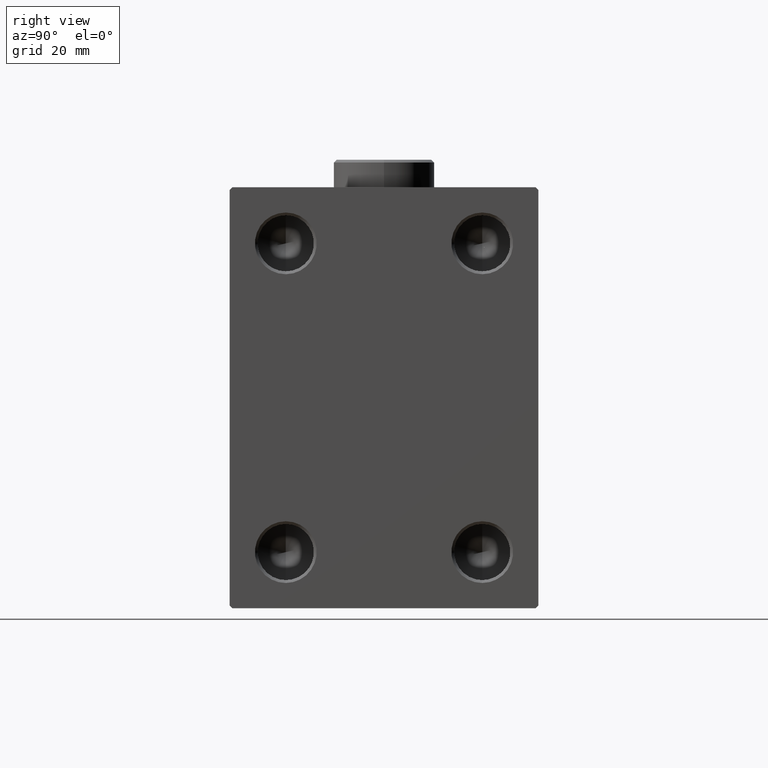
[diagram: clean part render]
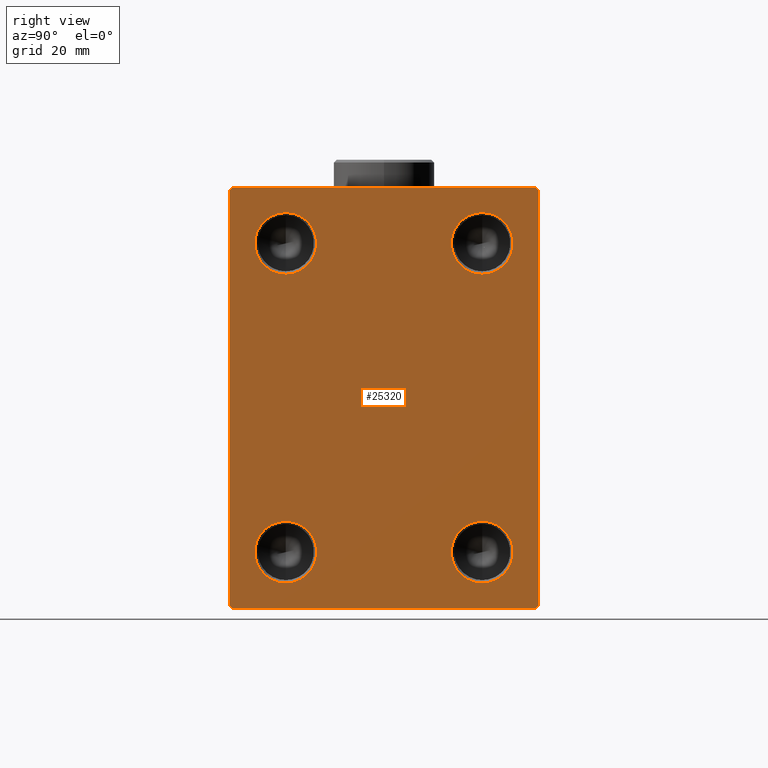
[diagram: same view with one face highlighted and labeled with its STEP entity id]
A machine part, right view. The second image highlights one B-rep face of the part: STEP entity #25320.
In plain terms, the highlighted planar face has unit normal (1, 0, 0).
Its self-contained STEP definition (entity closure, byte-faithful):
#144 = CIRCLE ( 'NONE', #19260, 5.500000000000001776 ) ;
#539 = CARTESIAN_POINT ( 'NONE',  ( 75.00000000000000000, 32.25000000000000000, 32.25000000000000000 ) ) ;
#1621 = CARTESIAN_POINT ( 'NONE',  ( 75.00000000000000000, 27.00000000000001066, 37.50000000000000000 ) ) ;
#1673 = ORIENTED_EDGE ( 'NONE', *, *, #9404, .T. ) ;
#1737 = VERTEX_POINT ( 'NONE', #24096 ) ;
#1793 = ORIENTED_EDGE ( 'NONE', *, *, #36798, .F. ) ;
#1804 = EDGE_CURVE ( 'NONE', #43908, #29186, #42068, .T. ) ;
#2322 = DIRECTION ( 'NONE',  ( 1.000000000000000000, -0.000000000000000000, -0.000000000000000000 ) ) ;
#2407 = DIRECTION ( 'NONE',  ( 1.000000000000000000, -0.000000000000000000, -0.000000000000000000 ) ) ;
#3032 = EDGE_CURVE ( 'NONE', #1737, #24815, #43502, .T. ) ;
#3157 = CARTESIAN_POINT ( 'NONE',  ( 75.00000000000000000, -27.49999999999999645, 37.49999999999998579 ) ) ;
#3461 = CARTESIAN_POINT ( 'NONE',  ( 75.00000000000000000, -27.49999999999999645, -37.00000000000000000 ) ) ;
#3662 = ORIENTED_EDGE ( 'NONE', *, *, #32637, .F. ) ;
#3777 = LINE ( 'NONE', #17599, #17011 ) ;
#4272 = CARTESIAN_POINT ( 'NONE',  ( 75.00000000000000000, -27.49999999999999645, -37.50000000000000000 ) ) ;
#4299 = CARTESIAN_POINT ( 'NONE',  ( 75.00000000000000000, 27.50000000000000355, -37.00000000000000000 ) ) ;
#4615 = DIRECTION ( 'NONE',  ( 0.000000000000000000, -0.7071067811865474617, -0.7071067811865474617 ) ) ;
#4986 = CIRCLE ( 'NONE', #30746, 5.500000000000018652 ) ;
#5028 = DIRECTION ( 'NONE',  ( 0.000000000000000000, -1.000000000000000000, -2.523234146875355998E-16 ) ) ;
#5125 = EDGE_CURVE ( 'NONE', #29186, #24761, #11251, .T. ) ;
#5245 = CARTESIAN_POINT ( 'NONE',  ( 75.00000000000000000, -27.49999999999999645, 36.99999999999997158 ) ) ;
#6049 = EDGE_CURVE ( 'NONE', #45426, #43908, #41751, .T. ) ;
#7092 = CARTESIAN_POINT ( 'NONE',  ( 75.00000000000000000, 17.50000000000000000, 33.00000000000001421 ) ) ;
#8102 = VERTEX_POINT ( 'NONE', #1621 ) ;
#8502 = CARTESIAN_POINT ( 'NONE',  ( 75.00000000000000000, 27.49999999999999645, 37.50000000000000000 ) ) ;
#9253 = DIRECTION ( 'NONE',  ( 0.000000000000000000, 0.000000000000000000, -1.000000000000000000 ) ) ;
#9404 = EDGE_CURVE ( 'NONE', #15386, #8102, #39245, .T. ) ;
#9546 = EDGE_CURVE ( 'NONE', #35651, #12459, #25163, .T. ) ;
#9634 = VECTOR ( 'NONE', #17876, 1000.000000000000000 ) ;
#10462 = DIRECTION ( 'NONE',  ( 1.000000000000000000, 0.000000000000000000, 0.000000000000000000 ) ) ;
#10842 = DIRECTION ( 'NONE',  ( 1.000000000000000000, -0.000000000000000000, -0.000000000000000000 ) ) ;
#11173 = CIRCLE ( 'NONE', #25154, 5.500000000000018652 ) ;
#11251 = LINE ( 'NONE', #25529, #30185 ) ;
#11361 = CARTESIAN_POINT ( 'NONE',  ( 75.00000000000000000, 0.000000000000000000, 0.000000000000000000 ) ) ;
#11873 = AXIS2_PLACEMENT_3D ( 'NONE', #30206, #2322, #9253 ) ;
#11959 = LINE ( 'NONE', #8502, #15090 ) ;
#12145 = ORIENTED_EDGE ( 'NONE', *, *, #3032, .F. ) ;
#12459 = VERTEX_POINT ( 'NONE', #7092 ) ;
#12932 = EDGE_CURVE ( 'NONE', #25615, #22696, #28947, .T. ) ;
#13009 = CARTESIAN_POINT ( 'NONE',  ( 75.00000000000000000, -17.50000000000000000, -21.99999999999997513 ) ) ;
#14151 = FACE_BOUND ( 'NONE', #16929, .T. ) ;
#14401 = ORIENTED_EDGE ( 'NONE', *, *, #1804, .T. ) ;
#14410 = EDGE_CURVE ( 'NONE', #23226, #41004, #34130, .T. ) ;
#14920 = CARTESIAN_POINT ( 'NONE',  ( 75.00000000000000000, 17.50000000000000000, 21.99999999999999289 ) ) ;
#15081 = DIRECTION ( 'NONE',  ( 1.000000000000000000, -0.000000000000000000, -0.000000000000000000 ) ) ;
#15090 = VECTOR ( 'NONE', #5028, 1000.000000000000000 ) ;
#15386 = VERTEX_POINT ( 'NONE', #38661 ) ;
#16231 = AXIS2_PLACEMENT_3D ( 'NONE', #19845, #33912, #23528 ) ;
#16237 = VECTOR ( 'NONE', #31171, 1000.000000000000114 ) ;
#16892 = CARTESIAN_POINT ( 'NONE',  ( 75.00000000000000000, 17.50000000000000000, 27.50000000000000000 ) ) ;
#16929 = EDGE_LOOP ( 'NONE', ( #3662, #12145 ) ) ;
#17011 = VECTOR ( 'NONE', #21286, 1000.000000000000000 ) ;
#17378 = VECTOR ( 'NONE', #20904, 1000.000000000000000 ) ;
#17534 = CARTESIAN_POINT ( 'NONE',  ( 75.00000000000000000, -17.50000000000000000, -33.00000000000001421 ) ) ;
#17591 = FACE_OUTER_BOUND ( 'NONE', #41794, .T. ) ;
#17599 = CARTESIAN_POINT ( 'NONE',  ( 75.00000000000000000, 27.50000000000000355, -37.50000000000000000 ) ) ;
#17745 = CARTESIAN_POINT ( 'NONE',  ( 75.00000000000000000, 17.50000000000000000, -27.49999999999999645 ) ) ;
#17825 = DIRECTION ( 'NONE',  ( 0.000000000000000000, 0.000000000000000000, -1.000000000000000000 ) ) ;
#17876 = DIRECTION ( 'NONE',  ( 0.000000000000000000, 1.000000000000000000, 0.000000000000000000 ) ) ;
#18283 = DIRECTION ( 'NONE',  ( -0.000000000000000000, -0.7071067811865474617, 0.7071067811865474617 ) ) ;
#19260 = AXIS2_PLACEMENT_3D ( 'NONE', #16892, #23574, #23807 ) ;
#19845 = CARTESIAN_POINT ( 'NONE',  ( 75.00000000000000000, -17.50000000000000000, 27.50000000000000000 ) ) ;
#20596 = DIRECTION ( 'NONE',  ( 0.000000000000000000, 0.000000000000000000, -1.000000000000000000 ) ) ;
#20904 = DIRECTION ( 'NONE',  ( 0.000000000000000000, 0.000000000000000000, -1.000000000000000000 ) ) ;
#21086 = EDGE_CURVE ( 'NONE', #8102, #38919, #11959, .T. ) ;
#21286 = DIRECTION ( 'NONE',  ( 0.000000000000000000, -9.251858538542971581E-17, 1.000000000000000000 ) ) ;
#21505 = FACE_BOUND ( 'NONE', #34967, .T. ) ;
#21900 = DIRECTION ( 'NONE',  ( 1.000000000000000000, -0.000000000000000000, -0.000000000000000000 ) ) ;
#22351 = EDGE_CURVE ( 'NONE', #38919, #23715, #43544, .T. ) ;
#22696 = VERTEX_POINT ( 'NONE', #13009 ) ;
#22799 = CARTESIAN_POINT ( 'NONE',  ( 75.00000000000000000, -32.24999999999997868, 32.24999999999997868 ) ) ;
#23044 = AXIS2_PLACEMENT_3D ( 'NONE', #28917, #15081, #29137 ) ;
#23226 = VERTEX_POINT ( 'NONE', #31612 ) ;
#23528 = DIRECTION ( 'NONE',  ( 0.000000000000000000, 0.000000000000000000, -1.000000000000000000 ) ) ;
#23574 = DIRECTION ( 'NONE',  ( 1.000000000000000000, -0.000000000000000000, -0.000000000000000000 ) ) ;
#23715 = VERTEX_POINT ( 'NONE', #5245 ) ;
#23807 = DIRECTION ( 'NONE',  ( 0.000000000000000000, 0.000000000000000000, -1.000000000000000000 ) ) ;
#23894 = LINE ( 'NONE', #3157, #17378 ) ;
#24096 = CARTESIAN_POINT ( 'NONE',  ( 75.00000000000000000, -17.50000000000000000, 21.99999999999997868 ) ) ;
#24239 = ORIENTED_EDGE ( 'NONE', *, *, #5125, .T. ) ;
#24593 = ORIENTED_EDGE ( 'NONE', *, *, #14410, .F. ) ;
#24670 = EDGE_CURVE ( 'NONE', #23715, #45426, #23894, .T. ) ;
#24761 = VERTEX_POINT ( 'NONE', #4299 ) ;
#24815 = VERTEX_POINT ( 'NONE', #41783 ) ;
#25154 = AXIS2_PLACEMENT_3D ( 'NONE', #35739, #21900, #43099 ) ;
#25163 = CIRCLE ( 'NONE', #42818, 5.500000000000001776 ) ;
#25320 = ADVANCED_FACE ( 'NONE', ( #35568, #14151, #21505, #39465, #17591 ), #42470, .T. ) ;
#25529 = CARTESIAN_POINT ( 'NONE',  ( 75.00000000000000000, 32.25000000000000000, -32.25000000000000000 ) ) ;
#25615 = VERTEX_POINT ( 'NONE', #17534 ) ;
#25996 = ORIENTED_EDGE ( 'NONE', *, *, #21086, .T. ) ;
#26071 = EDGE_CURVE ( 'NONE', #22696, #25615, #4986, .T. ) ;
#26331 = ORIENTED_EDGE ( 'NONE', *, *, #40551, .F. ) ;
#27139 = EDGE_LOOP ( 'NONE', ( #1793, #35729 ) ) ;
#27479 = CARTESIAN_POINT ( 'NONE',  ( 75.00000000000000000, -32.24999999999999289, -32.24999999999999289 ) ) ;
#28583 = DIRECTION ( 'NONE',  ( 0.000000000000000000, 0.000000000000000000, -1.000000000000000000 ) ) ;
#28628 = ORIENTED_EDGE ( 'NONE', *, *, #22351, .T. ) ;
#28917 = CARTESIAN_POINT ( 'NONE',  ( 75.00000000000000000, -17.50000000000000000, -27.49999999999999645 ) ) ;
#28947 = CIRCLE ( 'NONE', #23044, 5.500000000000018652 ) ;
#29137 = DIRECTION ( 'NONE',  ( 0.000000000000000000, 0.000000000000000000, -1.000000000000000000 ) ) ;
#29186 = VERTEX_POINT ( 'NONE', #38896 ) ;
#29212 = DIRECTION ( 'NONE',  ( -0.000000000000000000, 0.7071067811865474617, 0.7071067811865474617 ) ) ;
#29699 = CARTESIAN_POINT ( 'NONE',  ( 75.00000000000000000, -26.99999999999999645, -37.50000000000000000 ) ) ;
#29962 = EDGE_LOOP ( 'NONE', ( #26331, #24593 ) ) ;
#30185 = VECTOR ( 'NONE', #29212, 1000.000000000000114 ) ;
#30206 = CARTESIAN_POINT ( 'NONE',  ( 75.00000000000000000, -17.50000000000000000, 27.50000000000000000 ) ) ;
#30746 = AXIS2_PLACEMENT_3D ( 'NONE', #41567, #2407, #20596 ) ;
#31171 = DIRECTION ( 'NONE',  ( -0.000000000000000000, 0.7071067811865474617, -0.7071067811865474617 ) ) ;
#31612 = CARTESIAN_POINT ( 'NONE',  ( 75.00000000000000000, 17.50000000000000000, -33.00000000000001421 ) ) ;
#32575 = CARTESIAN_POINT ( 'NONE',  ( 75.00000000000000000, 17.50000000000000000, 27.50000000000000000 ) ) ;
#32637 = EDGE_CURVE ( 'NONE', #24815, #1737, #43424, .T. ) ;
#33912 = DIRECTION ( 'NONE',  ( 1.000000000000000000, -0.000000000000000000, -0.000000000000000000 ) ) ;
#34007 = VECTOR ( 'NONE', #18283, 1000.000000000000114 ) ;
#34130 = CIRCLE ( 'NONE', #40021, 5.500000000000018652 ) ;
#34967 = EDGE_LOOP ( 'NONE', ( #45268, #37831 ) ) ;
#35568 = FACE_BOUND ( 'NONE', #27139, .T. ) ;
#35651 = VERTEX_POINT ( 'NONE', #14920 ) ;
#35729 = ORIENTED_EDGE ( 'NONE', *, *, #9546, .F. ) ;
#35739 = CARTESIAN_POINT ( 'NONE',  ( 75.00000000000000000, 17.50000000000000000, -27.49999999999999645 ) ) ;
#35744 = VECTOR ( 'NONE', #4615, 1000.000000000000114 ) ;
#36798 = EDGE_CURVE ( 'NONE', #12459, #35651, #144, .T. ) ;
#37241 = ORIENTED_EDGE ( 'NONE', *, *, #24670, .T. ) ;
#37645 = CARTESIAN_POINT ( 'NONE',  ( 75.00000000000000000, 17.50000000000000000, -21.99999999999997513 ) ) ;
#37831 = ORIENTED_EDGE ( 'NONE', *, *, #12932, .F. ) ;
#37916 = ORIENTED_EDGE ( 'NONE', *, *, #6049, .T. ) ;
#38098 = AXIS2_PLACEMENT_3D ( 'NONE', #11361, #10462, #17825 ) ;
#38519 = ORIENTED_EDGE ( 'NONE', *, *, #39337, .T. ) ;
#38661 = CARTESIAN_POINT ( 'NONE',  ( 75.00000000000000000, 27.49999999999999645, 37.00000000000001421 ) ) ;
#38896 = CARTESIAN_POINT ( 'NONE',  ( 75.00000000000000000, 27.00000000000000355, -37.50000000000000000 ) ) ;
#38919 = VERTEX_POINT ( 'NONE', #45533 ) ;
#39245 = LINE ( 'NONE', #539, #34007 ) ;
#39337 = EDGE_CURVE ( 'NONE', #24761, #15386, #3777, .T. ) ;
#39465 = FACE_BOUND ( 'NONE', #29962, .T. ) ;
#39926 = DIRECTION ( 'NONE',  ( 1.000000000000000000, -0.000000000000000000, -0.000000000000000000 ) ) ;
#40021 = AXIS2_PLACEMENT_3D ( 'NONE', #17745, #10842, #28583 ) ;
#40157 = DIRECTION ( 'NONE',  ( 0.000000000000000000, 0.000000000000000000, -1.000000000000000000 ) ) ;
#40551 = EDGE_CURVE ( 'NONE', #41004, #23226, #11173, .T. ) ;
#41004 = VERTEX_POINT ( 'NONE', #37645 ) ;
#41567 = CARTESIAN_POINT ( 'NONE',  ( 75.00000000000000000, -17.50000000000000000, -27.49999999999999645 ) ) ;
#41751 = LINE ( 'NONE', #27479, #16237 ) ;
#41783 = CARTESIAN_POINT ( 'NONE',  ( 75.00000000000000000, -17.50000000000000000, 33.00000000000002842 ) ) ;
#41794 = EDGE_LOOP ( 'NONE', ( #25996, #28628, #37241, #37916, #14401, #24239, #38519, #1673 ) ) ;
#42068 = LINE ( 'NONE', #4272, #9634 ) ;
#42470 = PLANE ( 'NONE',  #38098 ) ;
#42818 = AXIS2_PLACEMENT_3D ( 'NONE', #32575, #39926, #40157 ) ;
#43099 = DIRECTION ( 'NONE',  ( 0.000000000000000000, 0.000000000000000000, -1.000000000000000000 ) ) ;
#43424 = CIRCLE ( 'NONE', #16231, 5.500000000000022204 ) ;
#43502 = CIRCLE ( 'NONE', #11873, 5.500000000000022204 ) ;
#43544 = LINE ( 'NONE', #22799, #35744 ) ;
#43908 = VERTEX_POINT ( 'NONE', #29699 ) ;
#45268 = ORIENTED_EDGE ( 'NONE', *, *, #26071, .F. ) ;
#45426 = VERTEX_POINT ( 'NONE', #3461 ) ;
#45533 = CARTESIAN_POINT ( 'NONE',  ( 75.00000000000000000, -26.99999999999998224, 37.49999999999998579 ) ) ;